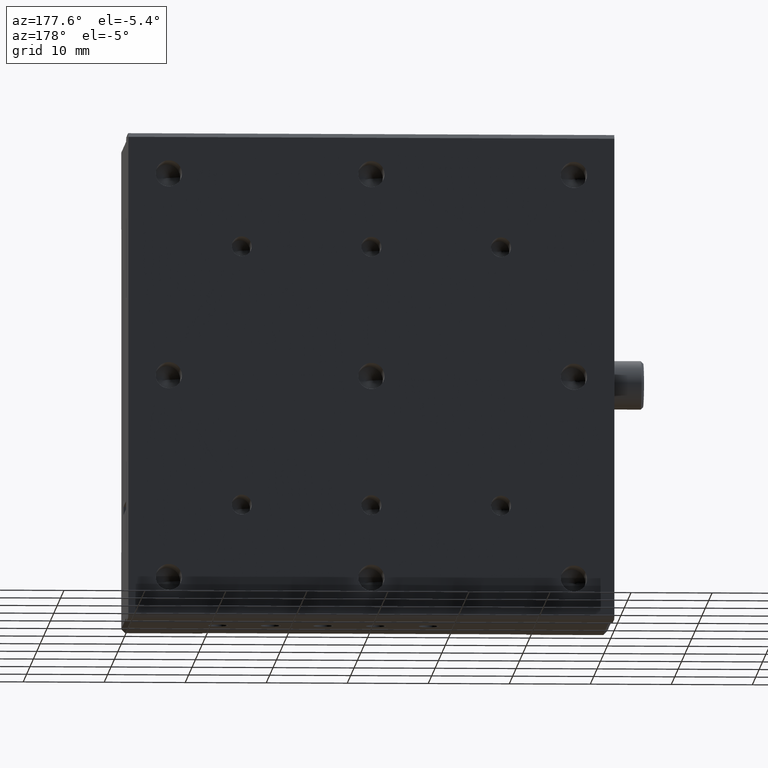
[diagram: clean part render]
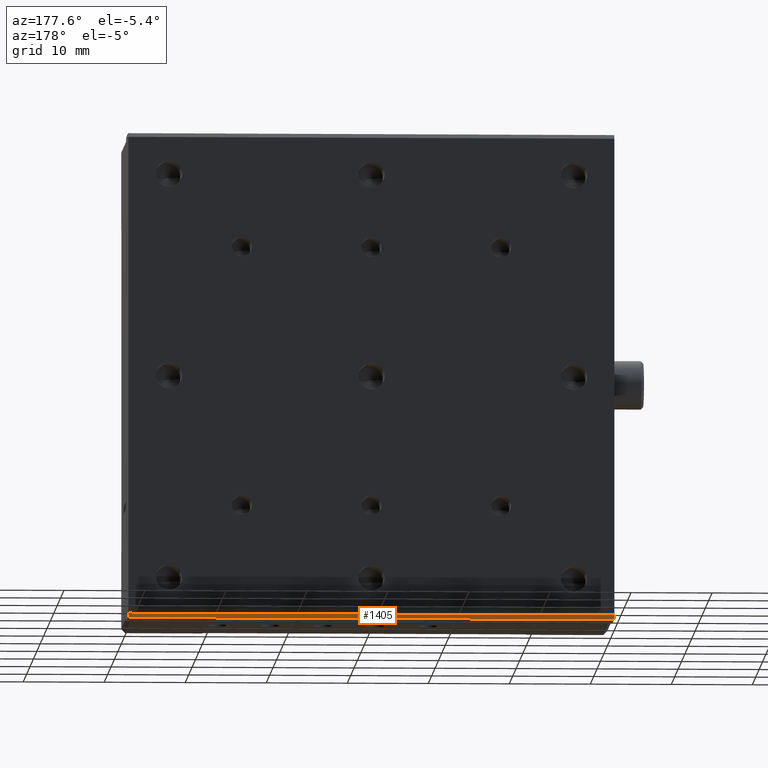
[diagram: same view with one face highlighted and labeled with its STEP entity id]
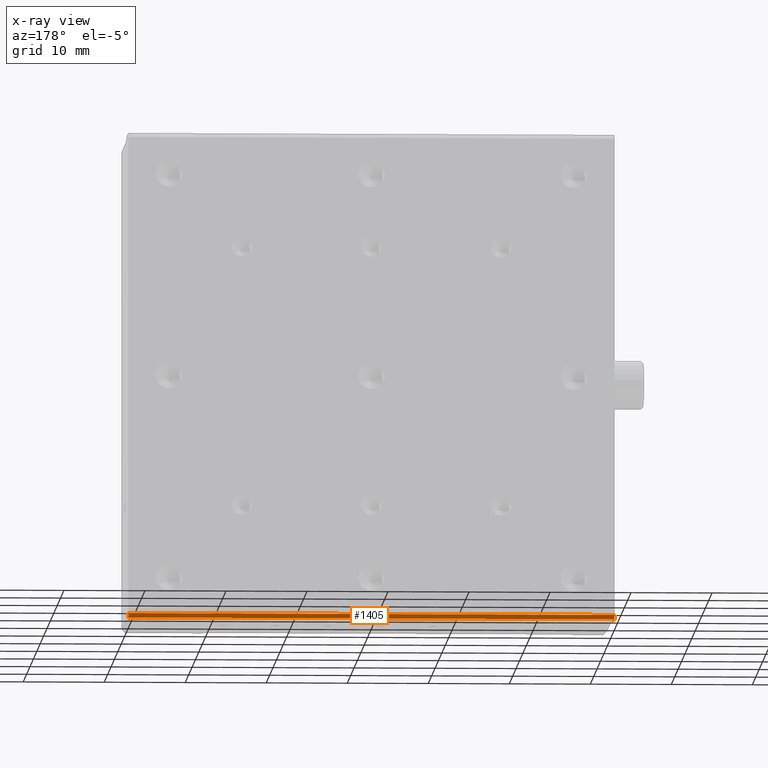
[diagram: x-ray of the same camera — body ghosted, the highlighted face saturated]
A machine part, auxiliary view. The second image highlights one B-rep face of the part: STEP entity #1405.
The next image is the same camera in x-ray: the body ghosted, the highlighted face saturated — about 0% of this face is hidden behind the body in this view.
In plain terms, the highlighted planar face has unit normal (0, 0.7071, -0.7071).
Its self-contained STEP definition (entity closure, byte-faithful):
#193 = CARTESIAN_POINT ( 'NONE',  ( -1.040834085586084257E-14, 20.50000000000000000, 0.000000000000000000 ) ) ;
#267 = DIRECTION ( 'NONE',  ( -0.000000000000000000, -0.7071067811865474617, -0.7071067811865474617 ) ) ;
#325 = EDGE_CURVE ( 'NONE', #1810, #1999, #919, .T. ) ;
#343 = ORIENTED_EDGE ( 'NONE', *, *, #325, .T. ) ;
#470 = CARTESIAN_POINT ( 'NONE',  ( 60.00000000000000000, 21.00000000000000000, 0.5000000000000004441 ) ) ;
#638 = DIRECTION ( 'NONE',  ( -0.000000000000000000, -0.7071067811865474617, -0.7071067811865474617 ) ) ;
#807 = CARTESIAN_POINT ( 'NONE',  ( 60.00000000000000000, 21.00000000000000000, 0.5000000000000000000 ) ) ;
#829 = EDGE_CURVE ( 'NONE', #1999, #3203, #1221, .T. ) ;
#919 = LINE ( 'NONE', #2893, #1814 ) ;
#938 = CARTESIAN_POINT ( 'NONE',  ( 60.00000000000000000, 20.50000000000000000, -1.084202172485504434E-16 ) ) ;
#1082 = DIRECTION ( 'NONE',  ( 0.000000000000000000, 0.7071067811865474617, 0.7071067811865474617 ) ) ;
#1221 = LINE ( 'NONE', #938, #1271 ) ;
#1240 = AXIS2_PLACEMENT_3D ( 'NONE', #807, #1711, #267 ) ;
#1265 = ORIENTED_EDGE ( 'NONE', *, *, #2134, .T. ) ;
#1271 = VECTOR ( 'NONE', #2566, 1000.000000000000000 ) ;
#1405 = ADVANCED_FACE ( 'NONE', ( #2554 ), #1946, .T. ) ;
#1711 = DIRECTION ( 'NONE',  ( 0.000000000000000000, 0.7071067811865475727, -0.7071067811865475727 ) ) ;
#1810 = VERTEX_POINT ( 'NONE', #2665 ) ;
#1814 = VECTOR ( 'NONE', #638, 1000.000000000000114 ) ;
#1921 = CARTESIAN_POINT ( 'NONE',  ( 60.00000000000000000, 20.50000000000000000, -2.710505431213761085E-17 ) ) ;
#1946 = PLANE ( 'NONE',  #1240 ) ;
#1999 = VERTEX_POINT ( 'NONE', #1921 ) ;
#2134 = EDGE_CURVE ( 'NONE', #3203, #3065, #2543, .T. ) ;
#2202 = ORIENTED_EDGE ( 'NONE', *, *, #829, .T. ) ;
#2266 = CARTESIAN_POINT ( 'NONE',  ( -2.775557561562891351E-14, 21.00000000000000000, 0.5000000000000000000 ) ) ;
#2336 = VECTOR ( 'NONE', #1082, 1000.000000000000114 ) ;
#2367 = CARTESIAN_POINT ( 'NONE',  ( -1.040834085586084257E-14, 21.00000000000000000, 0.5000000000000001110 ) ) ;
#2543 = LINE ( 'NONE', #2266, #2336 ) ;
#2554 = FACE_OUTER_BOUND ( 'NONE', #2750, .T. ) ;
#2566 = DIRECTION ( 'NONE',  ( -1.000000000000000000, 0.000000000000000000, 0.000000000000000000 ) ) ;
#2665 = CARTESIAN_POINT ( 'NONE',  ( 60.00000000000000000, 21.00000000000000000, 0.5000000000000000000 ) ) ;
#2750 = EDGE_LOOP ( 'NONE', ( #343, #2202, #1265, #2991 ) ) ;
#2893 = CARTESIAN_POINT ( 'NONE',  ( 60.00000000000000000, 21.00000000000000000, 0.5000000000000000000 ) ) ;
#2957 = EDGE_CURVE ( 'NONE', #1810, #3065, #3464, .T. ) ;
#2991 = ORIENTED_EDGE ( 'NONE', *, *, #2957, .F. ) ;
#3065 = VERTEX_POINT ( 'NONE', #2367 ) ;
#3203 = VERTEX_POINT ( 'NONE', #193 ) ;
#3426 = DIRECTION ( 'NONE',  ( -1.000000000000000000, 0.000000000000000000, 0.000000000000000000 ) ) ;
#3439 = VECTOR ( 'NONE', #3426, 1000.000000000000000 ) ;
#3464 = LINE ( 'NONE', #470, #3439 ) ;